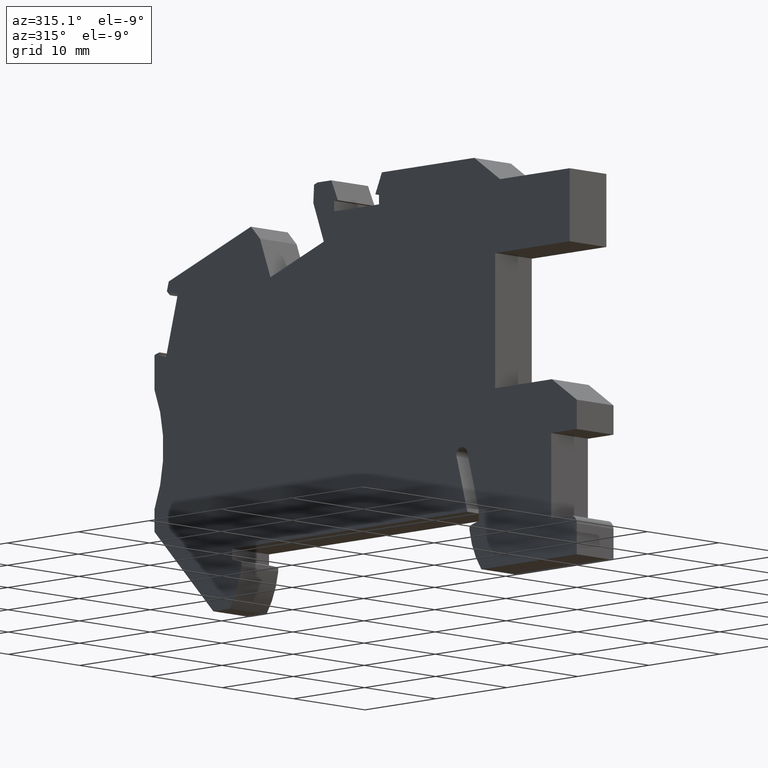
[diagram: clean part render]
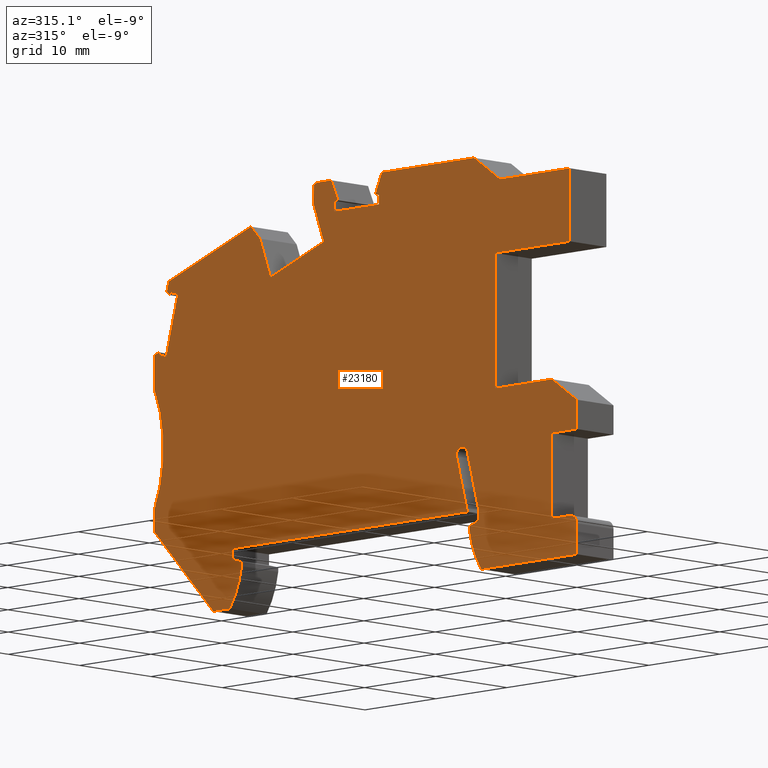
[diagram: same view with one face highlighted and labeled with its STEP entity id]
A machine part, auxiliary view. The second image highlights one B-rep face of the part: STEP entity #23180.
In plain terms, the highlighted planar face has unit normal (1, 0, -0).
Its self-contained STEP definition (entity closure, byte-faithful):
#100=CARTESIAN_POINT('',(6.01983281806535,-1.44497733323078,
-5.15000000000012));
#110=VERTEX_POINT('',#100);
#160=CARTESIAN_POINT('',(0.,-2.18411986250583,-5.1500000000004));
#170=DIRECTION('',(0.992546151641322,0.121869343405147,
4.26395030395099E-14));
#180=VECTOR('',#170,1.);
#190=LINE('',#160,#180);
#200=CARTESIAN_POINT('',(8.69970742749614,-1.11593010603698,
-5.15000000000003));
#210=VERTEX_POINT('',#200);
#220=EDGE_CURVE('',#110,#210,#190,.T.);
#530=CARTESIAN_POINT('',(20.2376660574208,8.15932971663343,
-5.14999999999972));
#540=DIRECTION('',(0.,0.,1.));
#550=DIRECTION('',(1.,0.,0.));
#560=AXIS2_PLACEMENT_3D('',#530,#540,#550);
#570=CIRCLE('',#560,0.8);
#580=CARTESIAN_POINT('',(20.1401705826967,8.95336663794648,
-5.14999999999972));
#590=VERTEX_POINT('',#580);
#600=CARTESIAN_POINT('',(19.4454516024276,8.27066819740167,
-5.14999999999975));
#610=VERTEX_POINT('',#600);
#620=EDGE_CURVE('',#590,#610,#570,.T.);
#1490=CARTESIAN_POINT('',(5.94316289323702,0.,-5.15000000000018));
#1500=DIRECTION('',(-0.121869343405147,0.992546151641322,
-2.84078316425962E-14));
#1510=VECTOR('',#1500,1.);
#1520=LINE('',#1490,#1510);
#1530=CARTESIAN_POINT('',(2.75549355524854,25.9614833864106,
-5.15000000000093));
#1540=VERTEX_POINT('',#1530);
#1550=CARTESIAN_POINT('',(1.85975388122069,33.2566976009745,
-5.15000000000113));
#1560=VERTEX_POINT('',#1550);
#1570=EDGE_CURVE('',#1540,#1560,#1520,.T.);
#2100=CARTESIAN_POINT('',(34.7208337772103,37.739872739132,
-5.14999999999973));
#2110=VERTEX_POINT('',#2100);
#2140=CARTESIAN_POINT('',(0.,33.4766904096144,-5.15000000000123));
#2150=DIRECTION('',(0.992546151641322,0.121869343405147,
4.26395030395099E-14));
#2160=VECTOR('',#2150,1.);
#2170=LINE('',#2140,#2160);
#2180=CARTESIAN_POINT('',(34.1968701852491,37.6755380995639,
-5.14999999999976));
#2190=VERTEX_POINT('',#2180);
#2200=EDGE_CURVE('',#2190,#2110,#2170,.T.);
#2490=CARTESIAN_POINT('',(63.5347758791042,10.5659563601578,
-5.14999999999779));
#2500=VERTEX_POINT('',#2490);
#2650=CARTESIAN_POINT('',(63.2559507241477,12.836805014957,
-5.14999999999785));
#2660=VERTEX_POINT('',#2650);
#2690=CARTESIAN_POINT('',(64.8321121913054,0.,-5.14999999999749));
#2700=DIRECTION('',(0.121869343405147,-0.992546151641322,
2.84078316425962E-14));
#2710=VECTOR('',#2700,1.);
#2720=LINE('',#2690,#2710);
#2730=EDGE_CURVE('',#2660,#2500,#2720,.T.);
#2960=CARTESIAN_POINT('',(28.9669429600424,37.0333837816599,
-5.14999999999998));
#2970=VERTEX_POINT('',#2960);
#3120=CARTESIAN_POINT('',(27.7922503537222,39.0099578483858,
-5.15000000000008));
#3130=VERTEX_POINT('',#3120);
#3160=CARTESIAN_POINT('',(50.9761572099248,0.,-5.14999999999812));
#3170=DIRECTION('',(-0.510892985900413,0.85964432002879,
-4.31321645066873E-14));
#3180=VECTOR('',#3170,1.);
#3190=LINE('',#3160,#3180);
#3200=EDGE_CURVE('',#2970,#3130,#3190,.T.);
#3840=CARTESIAN_POINT('',(64.8321121913054,0.,-5.14999999999749));
#3850=DIRECTION('',(0.121869343405147,-0.992546151641322,
2.84078316425962E-14));
#3860=VECTOR('',#3850,1.);
#3870=LINE('',#3840,#3860);
#3880=CARTESIAN_POINT('',(61.3659941005762,28.2292664911685,
-5.1499999999983));
#3890=VERTEX_POINT('',#3880);
#3900=CARTESIAN_POINT('',(61.7935186032859,24.7473588346528,
-5.14999999999819));
#3910=VERTEX_POINT('',#3900);
#3920=EDGE_CURVE('',#3890,#3910,#3870,.T.);
#4370=CARTESIAN_POINT('',(53.1553472271283,5.24929494933183,
-5.14999999999814));
#4380=VERTEX_POINT('',#4370);
#4410=CARTESIAN_POINT('',(53.7998796025319,0.,-5.14999999999799));
#4420=DIRECTION('',(-0.121869343405147,0.992546151641322,
-2.84078316425962E-14));
#4430=VECTOR('',#4420,1.);
#4440=LINE('',#4410,#4430);
#4450=CARTESIAN_POINT('',(53.0212909493828,6.34109571613718,
-5.14999999999817));
#4460=VERTEX_POINT('',#4450);
#4470=EDGE_CURVE('',#4380,#4460,#4440,.T.);
#4900=CARTESIAN_POINT('',(14.8905715021895,37.4258308756901,
-5.15000000000063));
#4910=VERTEX_POINT('',#4900);
#4940=CARTESIAN_POINT('',(0.,35.5974985922004,-5.15000000000127));
#4950=DIRECTION('',(0.992546151641322,0.121869343405147,
4.26464419334138E-14));
#4960=VECTOR('',#4950,1.);
#4970=LINE('',#4940,#4960);
#4980=EDGE_CURVE('',#4910,#3130,#4970,.T.);
#5540=CARTESIAN_POINT('',(3.7190388891674,9.90852733978212,
-5.15000000000051));
#5550=VERTEX_POINT('',#5540);
#5600=CARTESIAN_POINT('',(0.,6.55988968307486,-5.15000000000061));
#5610=DIRECTION('',(0.743144825477395,0.669130606358858,
1.8623991238087E-14));
#5620=VECTOR('',#5610,1.);
#5630=LINE('',#5600,#5620);
#5640=CARTESIAN_POINT('',(6.89428200466091,12.7675290826013,
-5.15000000000043));
#5650=VERTEX_POINT('',#5640);
#5660=EDGE_CURVE('',#5550,#5650,#5630,.T.);
#5970=CARTESIAN_POINT('',(72.1184651827974,0.,-5.14999999999715));
#5980=DIRECTION('',(0.374606593415343,-0.927183854567017,
3.84969833788773E-14));
#5990=VECTOR('',#5980,1.);
#6000=LINE('',#5970,#5990);
#6010=CARTESIAN_POINT('',(58.4013126977542,33.9511437820972,
-5.14999999999856));
#6020=VERTEX_POINT('',#6010);
#6030=CARTESIAN_POINT('',(58.5033209280686,33.6986645523051,
-5.14999999999855));
#6040=VERTEX_POINT('',#6030);
#6050=EDGE_CURVE('',#6020,#6040,#6000,.T.);
#6580=CARTESIAN_POINT('',(58.5067372954408,35.1050263424892,
-5.14999999999858));
#6590=VERTEX_POINT('',#6580);
#6620=CARTESIAN_POINT('',(72.6900885964576,0.,-5.14999999999713));
#6630=DIRECTION('',(0.374606593416301,-0.92718385456663,
3.84969833788773E-14));
#6640=VECTOR('',#6630,1.);
#6650=LINE('',#6620,#6640);
#6660=CARTESIAN_POINT('',(58.8801003856887,34.1809202662668,
-5.14999999999855));
#6670=VERTEX_POINT('',#6660);
#6680=EDGE_CURVE('',#6590,#6670,#6650,.T.);
#6910=CARTESIAN_POINT('',(0.,11.9210176939183,-5.15000000000073));
#6920=DIRECTION('',(0.992546151641322,0.121869343405147,
4.26395030395099E-14));
#6930=VECTOR('',#6920,1.);
#6940=LINE('',#6910,#6930);
#6950=CARTESIAN_POINT('',(14.8346512177917,13.7424838298426,
-5.15000000000009));
#6960=VERTEX_POINT('',#6950);
#6970=EDGE_CURVE('',#5650,#6960,#6940,.T.);
#7350=CARTESIAN_POINT('',(28.442979368079,36.9690491420914,-5.15));
#7360=VERTEX_POINT('',#7350);
#7390=CARTESIAN_POINT('',(32.9822078339886,0.,-5.14999999999895));
#7400=DIRECTION('',(-0.121869343405147,0.992546151641322,
-2.84078316425962E-14));
#7410=VECTOR('',#7400,1.);
#7420=LINE('',#7390,#7410);
#7430=CARTESIAN_POINT('',(28.5733795655224,35.9070247598364,
-5.14999999999997));
#7440=VERTEX_POINT('',#7430);
#7450=EDGE_CURVE('',#7440,#7360,#7420,.T.);
#7760=CARTESIAN_POINT('',(76.1699882756172,20.4675083979509,
-5.14999999999744));
#7770=DIRECTION('',(0.,0.,1.));
#7780=DIRECTION('',(1.,0.,0.));
#7790=AXIS2_PLACEMENT_3D('',#7760,#7770,#7780);
#7800=CIRCLE('',#7790,15.);
#7810=EDGE_CURVE('',#3910,#2660,#7800,.T.);
#8070=CARTESIAN_POINT('',(39.3547074800161,0.,-5.14999999999865));
#8080=DIRECTION('',(0.121869343405147,-0.992546151641322,
2.84078316425962E-14));
#8090=VECTOR('',#8080,1.);
#8100=LINE('',#8070,#8090);
#8110=CARTESIAN_POINT('',(34.851233974654,36.6778483568737,
-5.1499999999997));
#8120=VERTEX_POINT('',#8110);
#8130=EDGE_CURVE('',#2110,#8120,#8100,.T.);
#8540=CARTESIAN_POINT('',(0.,-0.169100211587931,-5.15000000000045));
#8550=DIRECTION('',(-0.992546151641322,-0.121869343405147,
-4.26395030395099E-14));
#8560=VECTOR('',#8550,1.);
#8570=LINE('',#8540,#8560);
#8580=CARTESIAN_POINT('',(20.1680133300548,2.30722044942677,
-5.14999999999958));
#8590=VERTEX_POINT('',#8580);
#8600=EDGE_CURVE('',#4460,#8590,#8570,.T.);
#8840=CARTESIAN_POINT('',(19.8437546422497,0.,-5.14999999999955));
#8850=DIRECTION('',(0.139173100960126,0.990268068741562,
-1.64174229766445E-14));
#8860=VECTOR('',#8850,1.);
#8870=LINE('',#8840,#8860);
#8880=CARTESIAN_POINT('',(20.9919967246766,8.17016694726421,
-5.14999999999968));
#8890=VERTEX_POINT('',#8880);
#8900=EDGE_CURVE('',#8590,#8890,#8870,.T.);
#9330=CARTESIAN_POINT('',(20.213500536174,8.96237042408523,
-5.14999999999974));
#9340=VERTEX_POINT('',#9330);
#9370=CARTESIAN_POINT('',(0.,6.48046463644048,-5.1500000000006));
#9380=DIRECTION('',(0.992546151641322,0.121869343405147,
4.26395030395099E-14));
#9390=VECTOR('',#9380,1.);
#9400=LINE('',#9370,#9390);
#9410=EDGE_CURVE('',#590,#9340,#9400,.T.);
#9590=CARTESIAN_POINT('',(52.4901168294319,0.,-5.14999999999805));
#9600=DIRECTION('',(-0.121869343404462,0.992546151641406,
-2.84078316425962E-14));
#9610=VECTOR('',#9600,1.);
#9620=LINE('',#9590,#9610);
#9630=CARTESIAN_POINT('',(51.9625327047195,4.2968278815814,
-5.14999999999817));
#9640=VERTEX_POINT('',#9630);
#9650=CARTESIAN_POINT('',(51.9074884597862,4.7451272811874,
-5.14999999999819));
#9660=VERTEX_POINT('',#9650);
#9670=EDGE_CURVE('',#9640,#9660,#9620,.T.);
#10180=CARTESIAN_POINT('',(4.07846492830384,6.98123716182017,
-5.15000000000043));
#10190=VERTEX_POINT('',#10180);
#10220=CARTESIAN_POINT('',(4.93565306777697,0.,-5.15000000000023));
#10230=DIRECTION('',(0.121869343405147,-0.992546151641322,
2.84078316425962E-14));
#10240=VECTOR('',#10230,1.);
#10250=LINE('',#10220,#10240);
#10260=EDGE_CURVE('',#5550,#10190,#10250,.T.);
#11330=CARTESIAN_POINT('',(18.5799394874281,2.11222949998685,
-5.14999999999965));
#11340=VERTEX_POINT('',#11330);
#11390=CARTESIAN_POINT('',(18.8392886591102,0.,-5.14999999999959));
#11400=DIRECTION('',(0.121869343405147,-0.992546151641322,
2.84078316425962E-14));
#11410=VECTOR('',#11400,1.);
#11420=LINE('',#11390,#11410);
#11430=CARTESIAN_POINT('',(18.7139957651748,1.02042873317326,
-5.14999999999962));
#11440=VERTEX_POINT('',#11430);
#11450=EDGE_CURVE('',#11340,#11440,#11420,.T.);
#11770=CARTESIAN_POINT('',(0.,-16.226859373798,-5.15000000000008));
#11780=DIRECTION('',(0.927183854566812,0.374606593415851,
3.38340466754516E-14));
#11790=VECTOR('',#11780,1.);
#11800=LINE('',#11770,#11790);
#11810=EDGE_CURVE('',#9660,#4380,#11800,.T.);
#12190=CARTESIAN_POINT('',(37.610613125586,38.1845597477154,
-5.14999999999961));
#12200=VERTEX_POINT('',#12190);
#12230=CARTESIAN_POINT('',(28.7950128875799,0.,-5.14999999999914));
#12240=DIRECTION('',(-0.224951054346894,-0.974370064784536,
1.21430643318377E-14));
#12250=VECTOR('',#12240,1.);
#12260=LINE('',#12230,#12250);
#12270=CARTESIAN_POINT('',(36.6433235919299,33.9947684692956,
-5.14999999999956));
#12280=VERTEX_POINT('',#12270);
#12290=EDGE_CURVE('',#12200,#12280,#12260,.T.);
#12800=CARTESIAN_POINT('',(0.,3.53374958153352,-5.15000000000054));
#12810=DIRECTION('',(-0.927183854566591,-0.374606593416397,
-3.38618022510673E-14));
#12820=VECTOR('',#12810,1.);
#12830=LINE('',#12800,#12820);
#12840=CARTESIAN_POINT('',(60.7706994011096,28.0867059019636,
-5.14999999999832));
#12850=VERTEX_POINT('',#12840);
#12860=CARTESIAN_POINT('',(59.7786126767233,27.6858768470081,
-5.14999999999836));
#12870=VERTEX_POINT('',#12860);
#12880=EDGE_CURVE('',#12850,#12870,#12830,.T.);
#13740=CARTESIAN_POINT('',(22.876943703111,0.,-5.14999999999941));
#13750=DIRECTION('',(-0.287750497358596,-0.957705409439605,
8.88178419700125E-15));
#13760=VECTOR('',#13750,1.);
#13770=LINE('',#13740,#13760);
#13780=CARTESIAN_POINT('',(34.858492855828,39.8775833312411,
-5.14999999999978));
#13790=VERTEX_POINT('',#13780);
#13800=EDGE_CURVE('',#13790,#2190,#13770,.T.);
#14160=CARTESIAN_POINT('',(57.4092259733668,33.550314727142,
-5.1499999999986));
#14170=VERTEX_POINT('',#14160);
#14200=CARTESIAN_POINT('',(70.9644330081631,0.,-5.14999999999721));
#14210=DIRECTION('',(-0.374606593416089,0.927183854566716,
-3.84969833788773E-14));
#14220=VECTOR('',#14210,1.);
#14230=LINE('',#14200,#14220);
#14240=EDGE_CURVE('',#12870,#14170,#14230,.T.);
#17580=CARTESIAN_POINT('',(11.5867061673051,34.4510171663447,
-5.15000000000072));
#17590=VERTEX_POINT('',#17580);
#17620=CARTESIAN_POINT('',(0.,24.0183000732125,-5.15000000000101));
#17630=DIRECTION('',(0.743144825477394,0.669130606358858,
1.85962356624714E-14));
#17640=VECTOR('',#17630,1.);
#17650=LINE('',#17620,#17640);
#17660=EDGE_CURVE('',#17590,#4910,#17650,.T.);
#17850=CARTESIAN_POINT('',(6.12951522712998,-2.33826886970797,
-5.15000000000012));
#17860=DIRECTION('',(0.,0.,1.));
#17870=DIRECTION('',(1.,0.,0.));
#17880=AXIS2_PLACEMENT_3D('',#17850,#17860,#17870);
#17890=CIRCLE('',#17880,0.9);
#17900=CARTESIAN_POINT('',(5.23622369065275,-2.44795127877226,
-5.15000000000012));
#17910=VERTEX_POINT('',#17900);
#17920=EDGE_CURVE('',#110,#17910,#17890,.T.);
#18250=CARTESIAN_POINT('',(44.2825767701831,0.,-5.14999999999843));
#18260=DIRECTION('',(0.172121645908491,-0.985075702172047,
3.05450109649996E-14));
#18270=VECTOR('',#18260,1.);
#18280=LINE('',#18250,#18270);
#18290=CARTESIAN_POINT('',(37.292945299917,40.0026161274151,
-5.14999999999967));
#18300=VERTEX_POINT('',#18290);
#18310=EDGE_CURVE('',#18300,#12200,#18280,.T.);
#18590=CARTESIAN_POINT('',(18.2830849904165,0.,-5.14999999999962));
#18600=DIRECTION('',(0.139173100960267,0.990268068741542,
-1.64174229766445E-14));
#18610=VECTOR('',#18600,1.);
#18620=LINE('',#18590,#18610);
#18630=EDGE_CURVE('',#11340,#610,#18620,.T.);
#19150=CARTESIAN_POINT('',(54.1087751513737,0.429563033614408,
-5.1499999999979));
#19160=VERTEX_POINT('',#19150);
#19190=CARTESIAN_POINT('',(61.1139937057468,6.84648698559079,
-5.14999999999781));
#19200=DIRECTION('',(0.,0.,-1.));
#19210=DIRECTION('',(-0.992546151641369,-0.121869343404765,0.));
#19220=AXIS2_PLACEMENT_3D('',#19190,#19200,#19210);
#19230=CIRCLE('',#19220,9.499999999999);
#19240=EDGE_CURVE('',#19160,#9640,#19230,.T.);
#19440=CARTESIAN_POINT('',(0.,32.3986548963715,-5.1500000000012));
#19450=DIRECTION('',(0.992546151641322,0.121869343405147,
4.26395030395099E-14));
#19460=VECTOR('',#19450,1.);
#19470=LINE('',#19440,#19460);
#19480=EDGE_CURVE('',#7440,#8120,#19470,.T.);
#19680=CARTESIAN_POINT('',(0.,35.5974985922012,-5.15000000000127));
#19690=DIRECTION('',(0.992546151641322,0.121869343405147,
4.26395030395099E-14));
#19700=VECTOR('',#19690,1.);
#19710=LINE('',#19680,#19700);
#19720=CARTESIAN_POINT('',(36.8012754989149,40.1161270450023,
-5.14999999999969));
#19730=VERTEX_POINT('',#19720);
#19740=EDGE_CURVE('',#13790,#19730,#19710,.T.);
#20540=CARTESIAN_POINT('',(0.,6.48046463644047,-5.1500000000006));
#20550=DIRECTION('',(-0.992546151641322,-0.121869343405147,
-4.26395030395099E-14));
#20560=VECTOR('',#20550,1.);
#20570=LINE('',#20540,#20560);
#20580=CARTESIAN_POINT('',(7.65163107421184,7.41996679807859,
-5.15000000000028));
#20590=VERTEX_POINT('',#20580);
#20600=EDGE_CURVE('',#20590,#10190,#20570,.T.);
#20850=CARTESIAN_POINT('',(37.0054457499842,0.,-5.14999999999876));
#20860=DIRECTION('',(0.224951054343866,0.974370064785235,
-1.21291865440298E-14));
#20870=VECTOR('',#20860,1.);
#20880=LINE('',#20850,#20870);
#20890=CARTESIAN_POINT('',(44.4382841101605,32.1951600345564,
-5.14999999999916));
#20900=VERTEX_POINT('',#20890);
#20910=CARTESIAN_POINT('',(45.4055736438386,36.3849513131314,
-5.14999999999921));
#20920=VERTEX_POINT('',#20910);
#20930=EDGE_CURVE('',#20900,#20920,#20880,.T.);
#21230=CARTESIAN_POINT('',(13.2241435371014,25.3204249973623,
-5.15000000000043));
#21240=DIRECTION('',(-4.57785225440583E-14,2.30142557181125E-14,1.));
#21250=DIRECTION('',(0.992546151641322,0.121869343405147,
4.2632564145606E-14));
#21260=AXIS2_PLACEMENT_3D('',#21230,#21240,#21250);
#21270=PLANE('',#21260);
#21280=CARTESIAN_POINT('',(10.6053593749795,0.644806497501714,
-5.14999999999998));
#21290=DIRECTION('',(0.,0.,1.));
#21300=DIRECTION('',(0.992546151641322,0.121869343405147,0.));
#21310=AXIS2_PLACEMENT_3D('',#21280,#21290,#21300);
#21320=CIRCLE('',#21310,9.49999999999899);
#21330=CARTESIAN_POINT('',(18.9548874062867,-3.88679163719603,
-5.14999999999998));
#21340=VERTEX_POINT('',#21330);
#21350=CARTESIAN_POINT('',(20.1018012370323,0.384821958285895,
-5.14999999999998));
#21360=VERTEX_POINT('',#21350);
#21370=EDGE_CURVE('',#21340,#21360,#21320,.T.);
#21380=ORIENTED_EDGE('',*,*,#21370,.F.);
#21390=CARTESIAN_POINT('',(20.1490514322065,0.,-5.14999999999953));
#21400=DIRECTION('',(0.121869343405772,-0.992546151641245,
2.84147705365001E-14));
#21410=VECTOR('',#21400,1.);
#21420=LINE('',#21390,#21410);
#21430=CARTESIAN_POINT('',(20.0467569920997,0.833121357882106,
-5.14999999999956));
#21440=VERTEX_POINT('',#21430);
#21450=EDGE_CURVE('',#21440,#21360,#21420,.T.);
#21460=ORIENTED_EDGE('',*,*,#21450,.T.);
#21470=CARTESIAN_POINT('',(0.,3.65050931862996,-5.15000000000054));
#21480=DIRECTION('',(0.990268068741556,-0.13917310096017,
4.85306239639272E-14));
#21490=VECTOR('',#21480,1.);
#21500=LINE('',#21470,#21490);
#21510=EDGE_CURVE('',#11440,#21440,#21500,.T.);
#21520=ORIENTED_EDGE('',*,*,#21510,.T.);
#21530=ORIENTED_EDGE('',*,*,#11450,.T.);
#21540=ORIENTED_EDGE('',*,*,#18630,.F.);
#21550=ORIENTED_EDGE('',*,*,#620,.T.);
#21560=ORIENTED_EDGE('',*,*,#9410,.F.);
#21570=CARTESIAN_POINT('',(20.2988090765575,8.26758811793629,
-5.14999999999971));
#21580=DIRECTION('',(0.,0.,1.));
#21590=DIRECTION('',(1.,0.,0.));
#21600=AXIS2_PLACEMENT_3D('',#21570,#21580,#21590);
#21610=CIRCLE('',#21600,0.7);
#21620=EDGE_CURVE('',#8890,#9340,#21610,.T.);
#21630=ORIENTED_EDGE('',*,*,#21620,.T.);
#21640=ORIENTED_EDGE('',*,*,#8900,.T.);
#21650=ORIENTED_EDGE('',*,*,#8600,.T.);
#21660=ORIENTED_EDGE('',*,*,#4470,.T.);
#21670=ORIENTED_EDGE('',*,*,#11810,.T.);
#21680=ORIENTED_EDGE('',*,*,#9670,.T.);
#21690=ORIENTED_EDGE('',*,*,#19240,.T.);
#21700=CARTESIAN_POINT('',(0.,-6.21415916433783,-5.15000000000031));
#21710=DIRECTION('',(-0.992546151641329,-0.12186934340509,
-4.26395030395099E-14));
#21720=VECTOR('',#21710,1.);
#21730=LINE('',#21700,#21720);
#21740=CARTESIAN_POINT('',(56.4045487981079,0.711448592760992,
-5.14999999999789));
#21750=VERTEX_POINT('',#21740);
#21760=EDGE_CURVE('',#21750,#19160,#21730,.T.);
#21770=ORIENTED_EDGE('',*,*,#21760,.T.);
#21780=CARTESIAN_POINT('',(55.8897803142244,0.,-5.1499999999979));
#21790=DIRECTION('',(-0.586197188888724,-0.810168411960722,
-8.18789480661053E-15));
#21800=VECTOR('',#21790,1.);
#21810=LINE('',#21780,#21800);
#21820=EDGE_CURVE('',#2500,#21750,#21810,.T.);
#21830=ORIENTED_EDGE('',*,*,#21820,.T.);
#21840=ORIENTED_EDGE('',*,*,#2730,.T.);
#21850=ORIENTED_EDGE('',*,*,#7810,.T.);
#21860=ORIENTED_EDGE('',*,*,#3920,.T.);
#21870=CARTESIAN_POINT('',(0.,38.9661708041692,-5.15000000000135));
#21880=DIRECTION('',(0.985036312056189,-0.17234692898553,
4.90579799006241E-14));
#21890=VECTOR('',#21880,1.);
#21900=LINE('',#21870,#21890);
#21910=CARTESIAN_POINT('',(61.0197522414422,28.2898467158542,
-5.14999999999831));
#21920=VERTEX_POINT('',#21910);
#21930=EDGE_CURVE('',#21920,#3890,#21900,.T.);
#21940=ORIENTED_EDGE('',*,*,#21930,.T.);
#21950=CARTESIAN_POINT('',(0.,36.8656136290272,-5.1500000000013));
#21960=DIRECTION('',(0.990268068741956,-0.139173100957321,
4.85306239639272E-14));
#21970=VECTOR('',#21960,1.);
#21980=LINE('',#21950,#21970);
#21990=CARTESIAN_POINT('',(60.6686911707954,28.3391851317534,
-5.14999999999833));
#22000=VERTEX_POINT('',#21990);
#22010=EDGE_CURVE('',#22000,#21920,#21980,.T.);
#22020=ORIENTED_EDGE('',*,*,#22010,.T.);
#22030=CARTESIAN_POINT('',(72.1184651828551,0.,-5.14999999999715));
#22040=DIRECTION('',(0.374606593416854,-0.927183854566407,
3.84692278032617E-14));
#22050=VECTOR('',#22040,1.);
#22060=LINE('',#22030,#22050);
#22070=EDGE_CURVE('',#22000,#12850,#22060,.T.);
#22080=ORIENTED_EDGE('',*,*,#22070,.F.);
#22090=ORIENTED_EDGE('',*,*,#12880,.F.);
#22100=ORIENTED_EDGE('',*,*,#14240,.F.);
#22110=CARTESIAN_POINT('',(0.,10.355481829013,-5.15000000000069));
#22120=DIRECTION('',(0.927183854566833,0.3746065934158,
3.38340466754516E-14));
#22130=VECTOR('',#22120,1.);
#22140=LINE('',#22110,#22130);
#22150=EDGE_CURVE('',#14170,#6020,#22140,.T.);
#22160=ORIENTED_EDGE('',*,*,#22150,.F.);
#22170=ORIENTED_EDGE('',*,*,#6050,.F.);
#22180=CARTESIAN_POINT('',(32.1750386808079,0.,-5.14999999999898));
#22190=DIRECTION('',(0.615661475326723,0.78801075360589,
1.00475183728577E-14));
#22200=VECTOR('',#22190,1.);
#22210=LINE('',#22180,#22200);
#22220=EDGE_CURVE('',#6040,#6670,#22210,.T.);
#22230=ORIENTED_EDGE('',*,*,#22220,.F.);
#22240=ORIENTED_EDGE('',*,*,#6680,.T.);
#22250=CARTESIAN_POINT('',(0.,48.6123709505544,-5.15000000000157));
#22260=DIRECTION('',(0.974370064785205,-0.224951054343995,
4.97657470788226E-14));
#22270=VECTOR('',#22260,1.);
#22280=LINE('',#22250,#22270);
#22290=CARTESIAN_POINT('',(46.4880750542452,37.8797531538648,
-5.1499999999992));
#22300=VERTEX_POINT('',#22290);
#22310=EDGE_CURVE('',#22300,#6590,#22280,.T.);
#22320=ORIENTED_EDGE('',*,*,#22310,.T.);
#22330=CARTESIAN_POINT('',(19.0564215082522,0.,-5.14999999999958));
#22340=DIRECTION('',(0.586530675816981,0.809927012962079,
8.21565038222616E-15));
#22350=VECTOR('',#22340,1.);
#22360=LINE('',#22330,#22350);
#22370=EDGE_CURVE('',#20920,#22300,#22360,.T.);
#22380=ORIENTED_EDGE('',*,*,#22370,.T.);
#22390=ORIENTED_EDGE('',*,*,#20930,.T.);
#22400=CARTESIAN_POINT('',(0.,42.454546303793,-5.15000000000143));
#22410=DIRECTION('',(-0.974370064785235,0.224951054343865,
-4.97657470788226E-14));
#22420=VECTOR('',#22410,1.);
#22430=LINE('',#22400,#22420);
#22440=EDGE_CURVE('',#20900,#12280,#22430,.T.);
#22450=ORIENTED_EDGE('',*,*,#22440,.F.);
#22460=ORIENTED_EDGE('',*,*,#12290,.T.);
#22470=ORIENTED_EDGE('',*,*,#18310,.T.);
#22480=CARTESIAN_POINT('',(0.,48.6123709505563,-5.15000000000157));
#22490=DIRECTION('',(0.974370064785208,-0.224951054343983,
4.97657470788226E-14));
#22500=VECTOR('',#22490,1.);
#22510=LINE('',#22480,#22500);
#22520=EDGE_CURVE('',#19730,#18300,#22510,.T.);
#22530=ORIENTED_EDGE('',*,*,#22520,.T.);
#22540=ORIENTED_EDGE('',*,*,#19740,.T.);
#22550=ORIENTED_EDGE('',*,*,#13800,.F.);
#22560=ORIENTED_EDGE('',*,*,#2200,.F.);
#22570=ORIENTED_EDGE('',*,*,#8130,.F.);
#22580=ORIENTED_EDGE('',*,*,#19480,.T.);
#22590=ORIENTED_EDGE('',*,*,#7450,.F.);
#22600=CARTESIAN_POINT('',(0.,33.4766904096115,-5.15000000000123));
#22610=DIRECTION('',(0.992546151641322,0.121869343405147,
4.26395030395099E-14));
#22620=VECTOR('',#22610,1.);
#22630=LINE('',#22600,#22620);
#22640=EDGE_CURVE('',#7360,#2970,#22630,.T.);
#22650=ORIENTED_EDGE('',*,*,#22640,.F.);
#22660=ORIENTED_EDGE('',*,*,#3200,.F.);
#22670=ORIENTED_EDGE('',*,*,#4980,.T.);
#22680=ORIENTED_EDGE('',*,*,#17660,.T.);
#22690=CARTESIAN_POINT('',(0.,33.0283485372812,-5.15000000000121));
#22700=DIRECTION('',(0.992546151641322,0.121869343405147,
4.26395030395099E-14));
#22710=VECTOR('',#22700,1.);
#22720=LINE('',#22690,#22710);
#22730=EDGE_CURVE('',#1560,#17590,#22720,.T.);
#22740=ORIENTED_EDGE('',*,*,#22730,.T.);
#22750=ORIENTED_EDGE('',*,*,#1570,.T.);
#22760=CARTESIAN_POINT('',(0.,25.6231513201586,-5.15000000000104));
#22770=DIRECTION('',(0.992546151641322,0.121869343405147,
4.26395030395099E-14));
#22780=VECTOR('',#22770,1.);
#22790=LINE('',#22760,#22780);
#22800=CARTESIAN_POINT('',(13.1772281474818,27.2411114921645,
-5.15000000000048));
#22810=VERTEX_POINT('',#22800);
#22820=EDGE_CURVE('',#1540,#22810,#22790,.T.);
#22830=ORIENTED_EDGE('',*,*,#22820,.F.);
#22840=CARTESIAN_POINT('',(16.5220160605542,0.,-5.1499999999997));
#22850=DIRECTION('',(-0.121869343405148,0.992546151641322,
-2.84147705365001E-14));
#22860=VECTOR('',#22850,1.);
#22870=LINE('',#22840,#22860);
#22880=EDGE_CURVE('',#6960,#22810,#22870,.T.);
#22890=ORIENTED_EDGE('',*,*,#22880,.T.);
#22900=ORIENTED_EDGE('',*,*,#6970,.T.);
#22910=ORIENTED_EDGE('',*,*,#5660,.T.);
#22920=ORIENTED_EDGE('',*,*,#10260,.F.);
#22930=ORIENTED_EDGE('',*,*,#20600,.T.);
#22940=CARTESIAN_POINT('',(8.56268843942805,0.,-5.15000000000006));
#22950=DIRECTION('',(-0.121869343405147,0.992546151641322,
-2.84078316425962E-14));
#22960=VECTOR('',#22950,1.);
#22970=LINE('',#22940,#22960);
#22980=EDGE_CURVE('',#210,#20590,#22970,.T.);
#22990=ORIENTED_EDGE('',*,*,#22980,.T.);
#23000=ORIENTED_EDGE('',*,*,#220,.T.);
#23010=ORIENTED_EDGE('',*,*,#17920,.F.);
#23020=CARTESIAN_POINT('',(4.93565306777795,0.,-5.15000000000023));
#23030=DIRECTION('',(-0.121869343404765,0.992546151641369,
-2.84078316425962E-14));
#23040=VECTOR('',#23030,1.);
#23050=LINE('',#23020,#23040);
#23060=CARTESIAN_POINT('',(5.61401865520755,-5.52484434886076,
-5.15000000000007));
#23070=VERTEX_POINT('',#23060);
#23080=EDGE_CURVE('',#23070,#17910,#23050,.T.);
#23090=ORIENTED_EDGE('',*,*,#23080,.T.);
#23100=CARTESIAN_POINT('',(0.,-6.21415916434122,-5.15000000000031));
#23110=DIRECTION('',(-0.99254615164132,-0.121869343405163,
-4.26464419334138E-14));
#23120=VECTOR('',#23110,1.);
#23130=LINE('',#23100,#23120);
#23140=EDGE_CURVE('',#21340,#23070,#23130,.T.);
#23150=ORIENTED_EDGE('',*,*,#23140,.T.);
#23160=EDGE_LOOP('',(#23150,#23090,#23010,#23000,#22990,#22930,#22920,
#22910,#22900,#22890,#22830,#22750,#22740,#22680,#22670,#22660,#22650,
#22590,#22580,#22570,#22560,#22550,#22540,#22530,#22470,#22460,#22450,
#22390,#22380,#22320,#22240,#22230,#22170,#22160,#22100,#22090,#22080,
#22020,#21940,#21860,#21850,#21840,#21830,#21770,#21690,#21680,#21670,
#21660,#21650,#21640,#21630,#21560,#21550,#21540,#21530,#21520,#21460,
#21380));
#23170=FACE_OUTER_BOUND('',#23160,.T.);
#23180=ADVANCED_FACE('',(#23170),#21270,.F.);